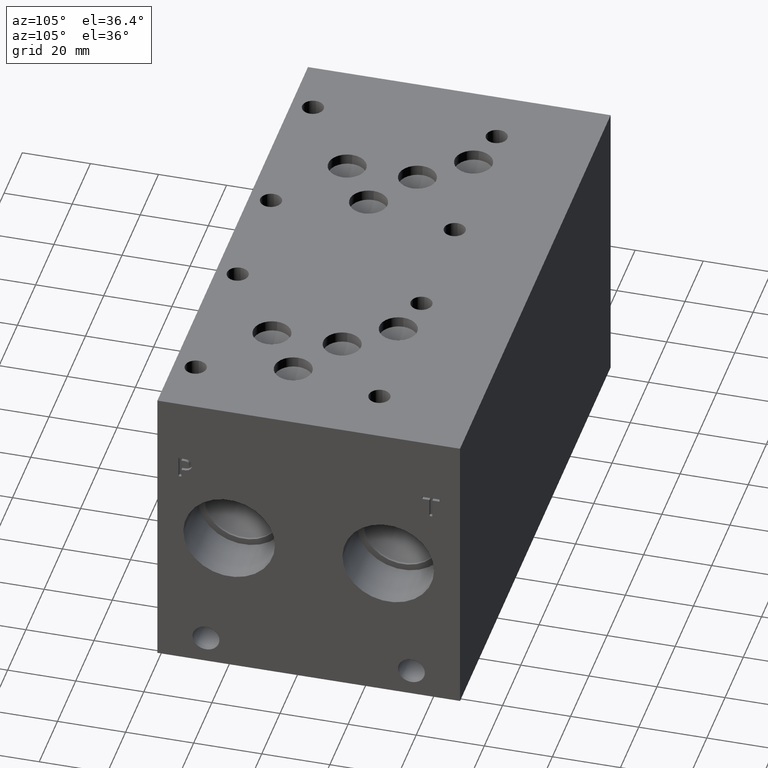
[diagram: clean part render]
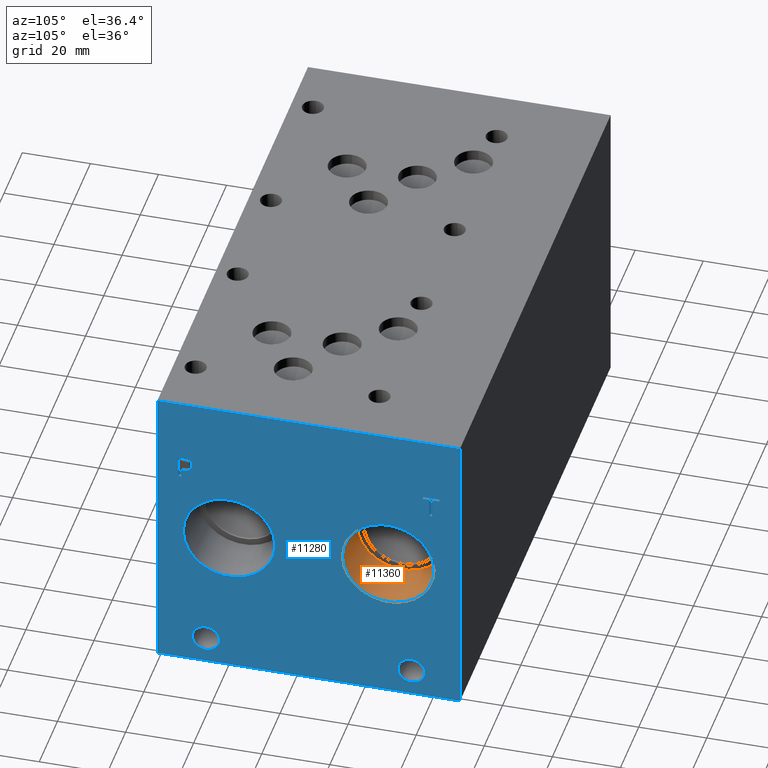
[diagram: same view with the hole feature highlighted: cylindrical wall and planar end face, labeled with their STEP entity ids]
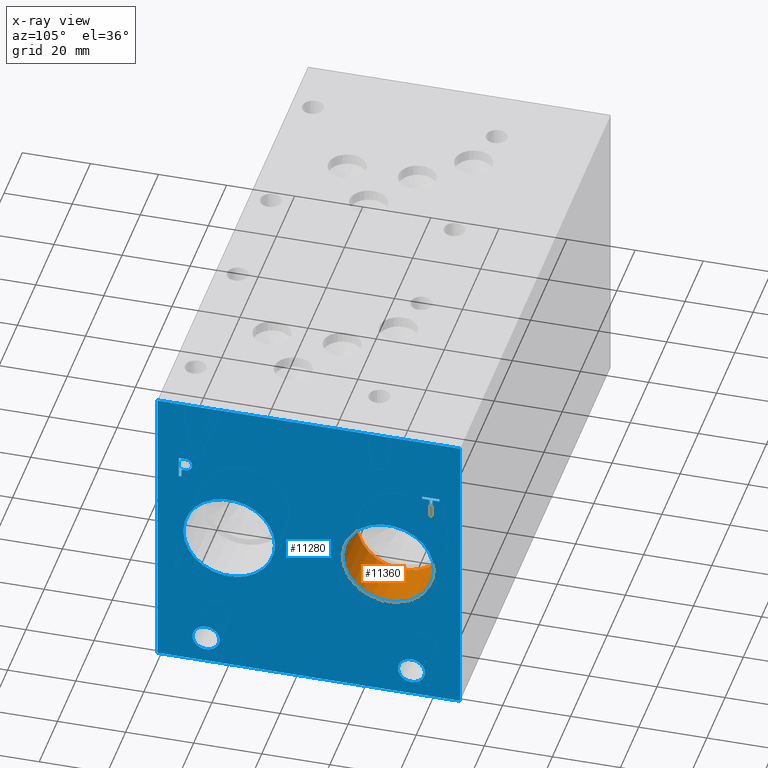
[diagram: x-ray of the same camera — body ghosted, the hole faces saturated]
A machine part, auxiliary view. The highlighted faces form one hole feature of diameter 26.924 mm: the cylindrical wall (entity #11360, orange) and its adjacent planar end face (entity #11280, blue) — they share a circular edge in the B-rep.
The next image is the same camera in x-ray (body ghosted, the hole faces saturated) — the bore reads through the body.
Wall:
#28=CYLINDRICAL_SURFACE('',#11867,13.462);
#113=CIRCLE('',#11756,13.462);
#114=CIRCLE('',#11757,13.462);
#156=CIRCLE('',#11864,13.462);
#157=CIRCLE('',#11865,13.462);
#1346=FACE_OUTER_BOUND('',#1996,.T.);
#1996=EDGE_LOOP('',(#9652,#9653,#9654,#9655,#9656,#9657));
#3118=LINE('',#19242,#4194);
#4194=VECTOR('',#13911,13.462);
#5079=VERTEX_POINT('',#18697);
#5080=VERTEX_POINT('',#18698);
#5198=VERTEX_POINT('',#19235);
#5199=VERTEX_POINT('',#19236);
#6553=EDGE_CURVE('',#5079,#5080,#113,.T.);
#6554=EDGE_CURVE('',#5080,#5079,#114,.T.);
#6729=EDGE_CURVE('',#5198,#5199,#156,.T.);
#6730=EDGE_CURVE('',#5199,#5198,#157,.T.);
#6732=EDGE_CURVE('',#5080,#5199,#3118,.T.);
#9652=ORIENTED_EDGE('',*,*,#6553,.F.);
#9653=ORIENTED_EDGE('',*,*,#6554,.F.);
#9654=ORIENTED_EDGE('',*,*,#6732,.T.);
#9655=ORIENTED_EDGE('',*,*,#6729,.F.);
#9656=ORIENTED_EDGE('',*,*,#6730,.F.);
#9657=ORIENTED_EDGE('',*,*,#6732,.F.);
#11360=ADVANCED_FACE('',(#1346),#28,.F.);
#11756=AXIS2_PLACEMENT_3D('',#18699,#13576,#13577);
#11757=AXIS2_PLACEMENT_3D('',#18700,#13578,#13579);
#11864=AXIS2_PLACEMENT_3D('',#19237,#13903,#13904);
#11865=AXIS2_PLACEMENT_3D('',#19238,#13905,#13906);
#11867=AXIS2_PLACEMENT_3D('',#19241,#13909,#13910);
#13576=DIRECTION('center_axis',(-1.,0.,0.));
#13577=DIRECTION('ref_axis',(0.,1.,0.));
#13578=DIRECTION('center_axis',(-1.,0.,0.));
#13579=DIRECTION('ref_axis',(0.,1.,0.));
#13903=DIRECTION('center_axis',(1.,0.,0.));
#13904=DIRECTION('ref_axis',(0.,1.,0.));
#13905=DIRECTION('center_axis',(1.,0.,0.));
#13906=DIRECTION('ref_axis',(0.,1.,0.));
#13909=DIRECTION('center_axis',(1.,0.,0.));
#13910=DIRECTION('ref_axis',(0.,1.,0.));
#13911=DIRECTION('',(-1.,0.,0.));
#18697=CARTESIAN_POINT('',(165.1,81.28,44.45));
#18698=CARTESIAN_POINT('',(165.1,54.356,44.45));
#18699=CARTESIAN_POINT('Origin',(165.1,67.818,44.45));
#18700=CARTESIAN_POINT('Origin',(165.1,67.818,44.45));
#19235=CARTESIAN_POINT('',(149.2504,81.28,44.45));
#19236=CARTESIAN_POINT('',(149.2504,54.356,44.45));
#19237=CARTESIAN_POINT('Origin',(149.2504,67.818,44.45));
#19238=CARTESIAN_POINT('Origin',(149.2504,67.818,44.45));
#19241=CARTESIAN_POINT('Origin',(157.1752,67.818,44.45));
#19242=CARTESIAN_POINT('',(157.1752,54.356,44.45));
End face:
#111=CIRCLE('',#11754,13.462);
#112=CIRCLE('',#11755,13.462);
#113=CIRCLE('',#11756,13.462);
#114=CIRCLE('',#11757,13.462);
#115=CIRCLE('',#11758,3.9624);
#116=CIRCLE('',#11759,3.9624);
#117=CIRCLE('',#11760,3.9624);
#118=CIRCLE('',#11761,3.9624);
#556=B_SPLINE_CURVE_WITH_KNOTS('',2,(#18590,#18591,#18592,#18593),
 .UNSPECIFIED.,.F.,.F.,(3,1,3),(0.,1.,2.),.UNSPECIFIED.);
#558=B_SPLINE_CURVE_WITH_KNOTS('',2,(#18611,#18612,#18613,#18614),
 .UNSPECIFIED.,.F.,.F.,(3,1,3),(0.,1.,2.),.UNSPECIFIED.);
#560=B_SPLINE_CURVE_WITH_KNOTS('',2,(#18660,#18661,#18662,#18663),
 .UNSPECIFIED.,.F.,.F.,(3,1,3),(0.,1.,2.),.UNSPECIFIED.);
#562=B_SPLINE_CURVE_WITH_KNOTS('',2,(#18678,#18679,#18680,#18681),
 .UNSPECIFIED.,.F.,.F.,(3,1,3),(0.,1.,2.),.UNSPECIFIED.);
#792=FACE_BOUND('',#1900,.T.);
#793=FACE_BOUND('',#1901,.T.);
#794=FACE_BOUND('',#1902,.T.);
#795=FACE_BOUND('',#1903,.T.);
#796=FACE_BOUND('',#1904,.T.);
#797=FACE_BOUND('',#1905,.T.);
#1266=FACE_OUTER_BOUND('',#1899,.T.);
#1899=EDGE_LOOP('',(#9262,#9263,#9264,#9265));
#1900=EDGE_LOOP('',(#9266,#9267));
#1901=EDGE_LOOP('',(#9268,#9269));
#1902=EDGE_LOOP('',(#9270,#9271));
#1903=EDGE_LOOP('',(#9272,#9273));
#1904=EDGE_LOOP('',(#9274,#9275,#9276,#9277,#9278,#9279,#9280,#9281));
#1905=EDGE_LOOP('',(#9282,#9283,#9284,#9285,#9286,#9287,#9288,#9289,#9290));
#2170=LINE('',#14728,#3246);
#2988=LINE('',#18623,#4064);
#2991=LINE('',#18629,#4067);
#2994=LINE('',#18635,#4070);
#2997=LINE('',#18641,#4073);
#3000=LINE('',#18647,#4076);
#3004=LINE('',#18689,#4080);
#3005=LINE('',#18691,#4081);
#3006=LINE('',#18692,#4082);
#3007=LINE('',#18711,#4083);
#3008=LINE('',#18713,#4084);
#3009=LINE('',#18715,#4085);
#3010=LINE('',#18717,#4086);
#3011=LINE('',#18719,#4087);
#3012=LINE('',#18721,#4088);
#3013=LINE('',#18723,#4089);
#3014=LINE('',#18724,#4090);
#3246=VECTOR('',#12169,10.);
#4064=VECTOR('',#13541,10.);
#4067=VECTOR('',#13546,10.);
#4070=VECTOR('',#13551,10.);
#4073=VECTOR('',#13556,10.);
#4076=VECTOR('',#13561,10.);
#4080=VECTOR('',#13569,10.);
#4081=VECTOR('',#13570,10.);
#4082=VECTOR('',#13571,10.);
#4083=VECTOR('',#13588,10.);
#4084=VECTOR('',#13589,10.);
#4085=VECTOR('',#13590,10.);
#4086=VECTOR('',#13591,10.);
#4087=VECTOR('',#13592,10.);
#4088=VECTOR('',#13593,10.);
#4089=VECTOR('',#13594,10.);
#4090=VECTOR('',#13595,10.);
#4318=VERTEX_POINT('',#14725);
#4319=VERTEX_POINT('',#14727);
#5057=VERTEX_POINT('',#18588);
#5058=VERTEX_POINT('',#18589);
#5061=VERTEX_POINT('',#18610);
#5063=VERTEX_POINT('',#18622);
#5065=VERTEX_POINT('',#18628);
#5067=VERTEX_POINT('',#18634);
#5069=VERTEX_POINT('',#18640);
#5071=VERTEX_POINT('',#18646);
#5073=VERTEX_POINT('',#18659);
#5075=VERTEX_POINT('',#18688);
#5076=VERTEX_POINT('',#18690);
#5077=VERTEX_POINT('',#18693);
#5078=VERTEX_POINT('',#18694);
#5079=VERTEX_POINT('',#18697);
#5080=VERTEX_POINT('',#18698);
#5081=VERTEX_POINT('',#18701);
#5082=VERTEX_POINT('',#18702);
#5083=VERTEX_POINT('',#18705);
#5084=VERTEX_POINT('',#18706);
#5085=VERTEX_POINT('',#18709);
#5086=VERTEX_POINT('',#18710);
#5087=VERTEX_POINT('',#18712);
#5088=VERTEX_POINT('',#18714);
#5089=VERTEX_POINT('',#18716);
#5090=VERTEX_POINT('',#18718);
#5091=VERTEX_POINT('',#18720);
#5092=VERTEX_POINT('',#18722);
#5432=EDGE_CURVE('',#4318,#4319,#2170,.T.);
#6521=EDGE_CURVE('',#5057,#5058,#556,.T.);
#6525=EDGE_CURVE('',#5061,#5057,#558,.T.);
#6528=EDGE_CURVE('',#5063,#5061,#2988,.T.);
#6531=EDGE_CURVE('',#5065,#5063,#2991,.T.);
#6534=EDGE_CURVE('',#5067,#5065,#2994,.T.);
#6537=EDGE_CURVE('',#5069,#5067,#2997,.T.);
#6540=EDGE_CURVE('',#5071,#5069,#3000,.T.);
#6543=EDGE_CURVE('',#5073,#5071,#560,.T.);
#6546=EDGE_CURVE('',#5058,#5073,#562,.T.);
#6548=EDGE_CURVE('',#4318,#5075,#3004,.T.);
#6549=EDGE_CURVE('',#5075,#5076,#3005,.T.);
#6550=EDGE_CURVE('',#4319,#5076,#3006,.T.);
#6551=EDGE_CURVE('',#5077,#5078,#111,.T.);
#6552=EDGE_CURVE('',#5078,#5077,#112,.T.);
#6553=EDGE_CURVE('',#5079,#5080,#113,.T.);
#6554=EDGE_CURVE('',#5080,#5079,#114,.T.);
#6555=EDGE_CURVE('',#5081,#5082,#115,.T.);
#6556=EDGE_CURVE('',#5082,#5081,#116,.T.);
#6557=EDGE_CURVE('',#5083,#5084,#117,.T.);
#6558=EDGE_CURVE('',#5084,#5083,#118,.T.);
#6559=EDGE_CURVE('',#5085,#5086,#3007,.T.);
#6560=EDGE_CURVE('',#5086,#5087,#3008,.T.);
#6561=EDGE_CURVE('',#5087,#5088,#3009,.T.);
#6562=EDGE_CURVE('',#5088,#5089,#3010,.T.);
#6563=EDGE_CURVE('',#5089,#5090,#3011,.T.);
#6564=EDGE_CURVE('',#5090,#5091,#3012,.T.);
#6565=EDGE_CURVE('',#5091,#5092,#3013,.T.);
#6566=EDGE_CURVE('',#5092,#5085,#3014,.T.);
#9262=ORIENTED_EDGE('',*,*,#6548,.T.);
#9263=ORIENTED_EDGE('',*,*,#6549,.T.);
#9264=ORIENTED_EDGE('',*,*,#6550,.F.);
#9265=ORIENTED_EDGE('',*,*,#5432,.F.);
#9266=ORIENTED_EDGE('',*,*,#6551,.T.);
#9267=ORIENTED_EDGE('',*,*,#6552,.T.);
#9268=ORIENTED_EDGE('',*,*,#6553,.T.);
#9269=ORIENTED_EDGE('',*,*,#6554,.T.);
#9270=ORIENTED_EDGE('',*,*,#6555,.T.);
#9271=ORIENTED_EDGE('',*,*,#6556,.T.);
#9272=ORIENTED_EDGE('',*,*,#6557,.T.);
#9273=ORIENTED_EDGE('',*,*,#6558,.T.);
#9274=ORIENTED_EDGE('',*,*,#6559,.T.);
#9275=ORIENTED_EDGE('',*,*,#6560,.T.);
#9276=ORIENTED_EDGE('',*,*,#6561,.T.);
#9277=ORIENTED_EDGE('',*,*,#6562,.T.);
#9278=ORIENTED_EDGE('',*,*,#6563,.T.);
#9279=ORIENTED_EDGE('',*,*,#6564,.T.);
#9280=ORIENTED_EDGE('',*,*,#6565,.T.);
#9281=ORIENTED_EDGE('',*,*,#6566,.T.);
#9282=ORIENTED_EDGE('',*,*,#6521,.T.);
#9283=ORIENTED_EDGE('',*,*,#6546,.T.);
#9284=ORIENTED_EDGE('',*,*,#6543,.T.);
#9285=ORIENTED_EDGE('',*,*,#6540,.T.);
#9286=ORIENTED_EDGE('',*,*,#6537,.T.);
#9287=ORIENTED_EDGE('',*,*,#6534,.T.);
#9288=ORIENTED_EDGE('',*,*,#6531,.T.);
#9289=ORIENTED_EDGE('',*,*,#6528,.T.);
#9290=ORIENTED_EDGE('',*,*,#6525,.T.);
#10327=PLANE('',#11753);
#11280=ADVANCED_FACE('',(#1266,#792,#793,#794,#795,#796,#797),#10327,.T.);
#11753=AXIS2_PLACEMENT_3D('',#18687,#13567,#13568);
#11754=AXIS2_PLACEMENT_3D('',#18695,#13572,#13573);
#11755=AXIS2_PLACEMENT_3D('',#18696,#13574,#13575);
#11756=AXIS2_PLACEMENT_3D('',#18699,#13576,#13577);
#11757=AXIS2_PLACEMENT_3D('',#18700,#13578,#13579);
#11758=AXIS2_PLACEMENT_3D('',#18703,#13580,#13581);
#11759=AXIS2_PLACEMENT_3D('',#18704,#13582,#13583);
#11760=AXIS2_PLACEMENT_3D('',#18707,#13584,#13585);
#11761=AXIS2_PLACEMENT_3D('',#18708,#13586,#13587);
#12169=DIRECTION('',(0.,0.,1.));
#13541=DIRECTION('',(0.,1.,0.));
#13546=DIRECTION('',(0.,0.,1.));
#13551=DIRECTION('',(0.,-1.,0.));
#13556=DIRECTION('',(0.,0.,-1.));
#13561=DIRECTION('',(0.,-1.,0.));
#13567=DIRECTION('center_axis',(1.,0.,0.));
#13568=DIRECTION('ref_axis',(0.,1.,0.));
#13569=DIRECTION('',(0.,1.,0.));
#13570=DIRECTION('',(0.,0.,1.));
#13571=DIRECTION('',(0.,1.,0.));
#13572=DIRECTION('center_axis',(-1.,0.,0.));
#13573=DIRECTION('ref_axis',(0.,1.,0.));
#13574=DIRECTION('center_axis',(-1.,0.,0.));
#13575=DIRECTION('ref_axis',(0.,1.,0.));
#13576=DIRECTION('center_axis',(-1.,0.,0.));
#13577=DIRECTION('ref_axis',(0.,1.,0.));
#13578=DIRECTION('center_axis',(-1.,0.,0.));
#13579=DIRECTION('ref_axis',(0.,1.,0.));
#13580=DIRECTION('center_axis',(-1.,0.,0.));
#13581=DIRECTION('ref_axis',(0.,1.,0.));
#13582=DIRECTION('center_axis',(-1.,0.,0.));
#13583=DIRECTION('ref_axis',(0.,1.,0.));
#13584=DIRECTION('center_axis',(-1.,0.,0.));
#13585=DIRECTION('ref_axis',(0.,1.,0.));
#13586=DIRECTION('center_axis',(-1.,0.,0.));
#13587=DIRECTION('ref_axis',(0.,1.,0.));
#13588=DIRECTION('',(0.,-1.,0.));
#13589=DIRECTION('',(0.,0.,1.));
#13590=DIRECTION('',(0.,-1.,0.));
#13591=DIRECTION('',(0.,0.,1.));
#13592=DIRECTION('',(0.,1.,0.));
#13593=DIRECTION('',(0.,0.,-1.));
#13594=DIRECTION('',(0.,-1.,0.));
#13595=DIRECTION('',(0.,0.,-1.));
#14725=CARTESIAN_POINT('',(165.1,0.,0.));
#14727=CARTESIAN_POINT('',(165.1,0.,88.9));
#14728=CARTESIAN_POINT('',(165.1,0.,0.));
#18588=CARTESIAN_POINT('',(165.1,9.45681720235939,69.4537681439707));
#18589=CARTESIAN_POINT('',(165.1,10.213259654532,67.935737372604));
#18590=CARTESIAN_POINT('Ctrl Pts',(165.1,9.45681720235939,69.4537681439707));
#18591=CARTESIAN_POINT('Ctrl Pts',(165.1,9.81188202684857,69.2119123939564));
#18592=CARTESIAN_POINT('Ctrl Pts',(165.1,10.213259654532,68.4657616758269));
#18593=CARTESIAN_POINT('Ctrl Pts',(165.1,10.213259654532,67.935737372604));
#18610=CARTESIAN_POINT('',(165.1,7.7947021543883,69.8499999046326));
#18611=CARTESIAN_POINT('Ctrl Pts',(165.1,7.7947021543883,69.8499999046326));
#18612=CARTESIAN_POINT('Ctrl Pts',(165.1,8.36074752676236,69.8499999046326));
#18613=CARTESIAN_POINT('Ctrl Pts',(165.1,9.15321104808603,69.6647486918556));
#18614=CARTESIAN_POINT('Ctrl Pts',(165.1,9.45681720235939,69.4537681439707));
#18622=CARTESIAN_POINT('',(165.1,6.19948337769779,69.8499999046326));
#18623=CARTESIAN_POINT('',(165.1,3.09974168884889,69.8499999046326));
#18628=CARTESIAN_POINT('',(165.1,6.19948337769779,63.5));
#18629=CARTESIAN_POINT('',(165.1,6.19948337769779,31.75));
#18634=CARTESIAN_POINT('',(165.1,7.04340556923729,63.5));
#18635=CARTESIAN_POINT('',(165.1,3.52170278461864,63.5));
#18640=CARTESIAN_POINT('',(165.1,7.04340556923729,65.8670988299279));
#18641=CARTESIAN_POINT('',(165.1,7.04340556923729,32.9335494149639));
#18646=CARTESIAN_POINT('',(165.1,7.75868108523723,65.8670988299279));
#18647=CARTESIAN_POINT('',(165.1,3.87934054261861,65.8670988299279));
#18659=CARTESIAN_POINT('',(165.1,9.6575060162011,66.5257698086904));
#18660=CARTESIAN_POINT('Ctrl Pts',(165.1,9.6575060162011,66.5257698086904));
#18661=CARTESIAN_POINT('Ctrl Pts',(165.1,9.32817052681983,66.2015801863307));
#18662=CARTESIAN_POINT('Ctrl Pts',(165.1,8.43793553208609,65.8670988299279));
#18663=CARTESIAN_POINT('Ctrl Pts',(165.1,7.75868108523723,65.8670988299279));
#18678=CARTESIAN_POINT('Ctrl Pts',(165.1,10.213259654532,67.935737372604));
#18679=CARTESIAN_POINT('Ctrl Pts',(165.1,10.213259654532,67.5240680108774));
#18680=CARTESIAN_POINT('Ctrl Pts',(165.1,9.9199452343018,66.7830631597695));
#18681=CARTESIAN_POINT('Ctrl Pts',(165.1,9.6575060162011,66.5257698086904));
#18687=CARTESIAN_POINT('Origin',(165.1,0.,0.));
#18688=CARTESIAN_POINT('',(165.1,88.9,0.));
#18689=CARTESIAN_POINT('',(165.1,0.,0.));
#18690=CARTESIAN_POINT('',(165.1,88.9,88.9));
#18691=CARTESIAN_POINT('',(165.1,88.9,0.));
#18692=CARTESIAN_POINT('',(165.1,0.,88.9));
#18693=CARTESIAN_POINT('',(165.1,34.544,44.45));
#18694=CARTESIAN_POINT('',(165.1,7.62,44.45));
#18695=CARTESIAN_POINT('Origin',(165.1,21.082,44.45));
#18696=CARTESIAN_POINT('Origin',(165.1,21.082,44.45));
#18697=CARTESIAN_POINT('',(165.1,81.28,44.45));
#18698=CARTESIAN_POINT('',(165.1,54.356,44.45));
#18699=CARTESIAN_POINT('Origin',(165.1,67.818,44.45));
#18700=CARTESIAN_POINT('Origin',(165.1,67.818,44.45));
#18701=CARTESIAN_POINT('',(165.1,78.5876,7.9248));
#18702=CARTESIAN_POINT('',(165.1,70.6628,7.9248));
#18703=CARTESIAN_POINT('Origin',(165.1,74.6252,7.9248));
#18704=CARTESIAN_POINT('Origin',(165.1,74.6252,7.9248));
#18705=CARTESIAN_POINT('',(165.1,18.2372,7.9248));
#18706=CARTESIAN_POINT('',(165.1,10.3124,7.9248));
#18707=CARTESIAN_POINT('Origin',(165.1,14.2748,7.9248));
#18708=CARTESIAN_POINT('Origin',(165.1,14.2748,7.9248));
#18709=CARTESIAN_POINT('',(165.1,80.756665271453,63.5));
#18710=CARTESIAN_POINT('',(165.1,79.9127430799135,63.5));
#18711=CARTESIAN_POINT('',(165.1,40.3783326357265,63.5));
#18712=CARTESIAN_POINT('',(165.1,79.9127430799135,69.0987033194816));
#18713=CARTESIAN_POINT('',(165.1,79.9127430799135,31.75));
#18714=CARTESIAN_POINT('',(165.1,77.7823541329784,69.0987033194816));
#18715=CARTESIAN_POINT('',(165.1,39.9563715399567,69.0987033194816));
#18716=CARTESIAN_POINT('',(165.1,77.7823541329784,69.8499999046326));
#18717=CARTESIAN_POINT('',(165.1,77.7823541329784,34.5493516597408));
#18718=CARTESIAN_POINT('',(165.1,82.8870542183881,69.8499999046326));
#18719=CARTESIAN_POINT('',(165.1,38.8911770664892,69.8499999046326));
#18720=CARTESIAN_POINT('',(165.1,82.8870542183881,69.0987033194816));
#18721=CARTESIAN_POINT('',(165.1,82.8870542183881,34.9249999523163));
#18722=CARTESIAN_POINT('',(165.1,80.756665271453,69.0987033194816));
#18723=CARTESIAN_POINT('',(165.1,41.443527109194,69.0987033194816));
#18724=CARTESIAN_POINT('',(165.1,80.756665271453,34.5493516597408));